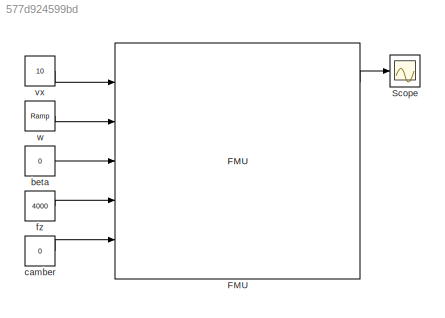
MODEL slx_577d924599bd
KIND model
CONFIG AbsTol = auto
CONFIG EnableMultiTasking = off
CONFIG FixedStep = 0.01
CONFIG MaxStep = auto
CONFIG MinStep = auto
CONFIG RelTol = 1e-3
CONFIG SampleTimeConstraint = Unconstrained
CONFIG Solver = ode1
CONFIG SolverName = ode1
CONFIG StartTime = 0.0
CONFIG StopTime = 10
BLOCK [FMU] FMU
  FMUMode = CoSimulation
  FMUName = MED2018_TireModel.fmu
  FMUSampleTime = -1
  MaskDisplay = disp('Rimac.Vehicle.Wheels.TyreFMUContainer');\nport_label('output',1,'Fx');\nport_label('output',2,'Fy');\nport_label('output',3,'Mz');\nport_label('output',4,'r');\nport_label('output',5,'Mx');\nport_label('input',1,'vx');\nport_label('input',2,'w');\nport_label('input',3,'beta');\nport_label('input',4,'Fz');\nport_label('input',5,'camber');
  MaskPromptString = Communication StepsizeCommunication stepsize between FMU and Simulink
  MaskType = Rimac.Vehicle.Wheels.TyreFMUContainer [Co-Simulation, v2.0]
  Ports = [5, 5]
BLOCK [Scope] Scope
  NumInputPorts = 1
  Ports = [1]
  ScopeSpecificationString = Simulink.scopes.TimeScopeBlockCfg('CurrentConfiguration', extmgr.ConfigurationSet(extmgr.Configuration('Core','General UI',true),extmgr.Configuration('Core','Source UI',true),extmgr.Configuration('Sources','WiredSimulink',true),extmgr.Configuration('Visuals','Time Domain',true,'SerializedDisplays',{struct('MinYLimReal','-5301.08701','MaxYLimReal','5305.45376','YLabelReal','','MinYLimMag','  0.0000...<+1406ch>
BLOCK [Constant] beta
  Value = 0
BLOCK [Constant] camber
  Value = 0
BLOCK [Constant] fz
  Value = 4000
BLOCK [Constant] vx
  Value = 10
BLOCK [Reference] w  REF=simulink/Sources/Ramp
  Ports = [0, 1]
  SourceBlock = simulink/Sources/Ramp
  SourceProductBaseCode = SL
  SourceProductName = Simulink
  SourceType = Ramp
LINE FMU:1 -> Scope:1
LINE beta:1 -> FMU:3
LINE camber:1 -> FMU:5
LINE fz:1 -> FMU:4
LINE vx:1 -> FMU:1
LINE w:1 -> FMU:2
